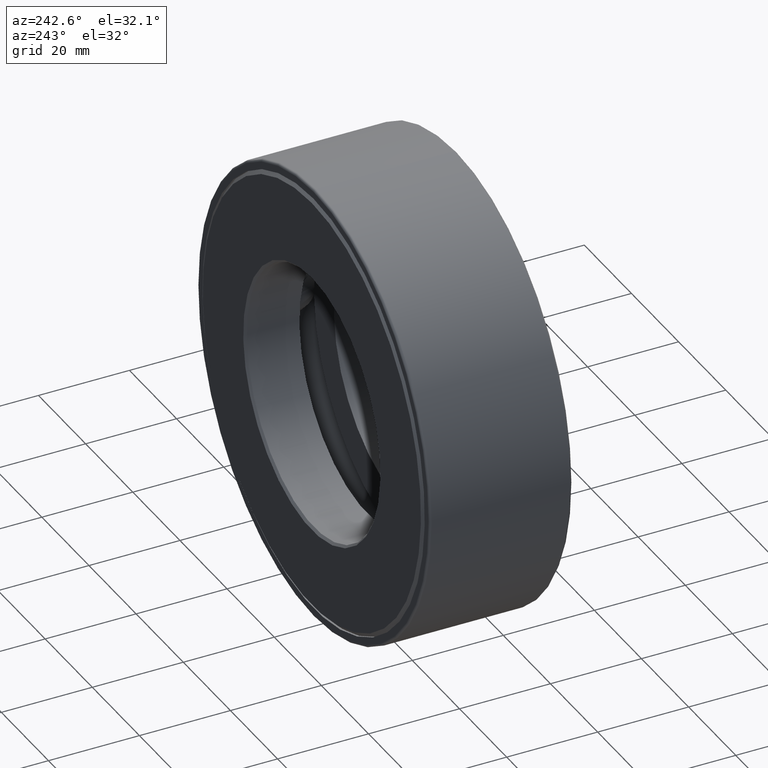
[diagram: clean part render]
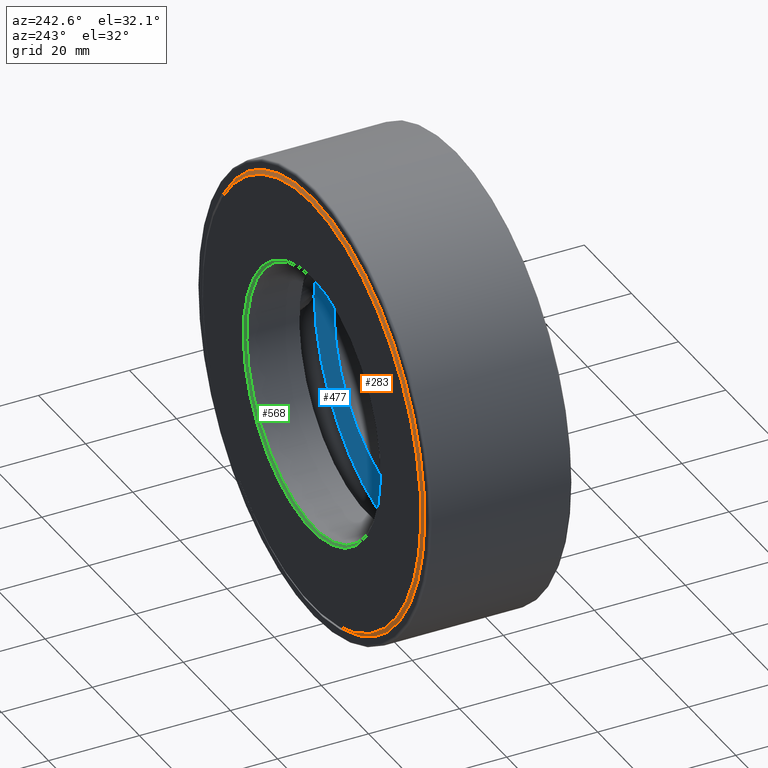
[diagram: same view with three faces highlighted in distinct colors, each labeled with its STEP entity id]
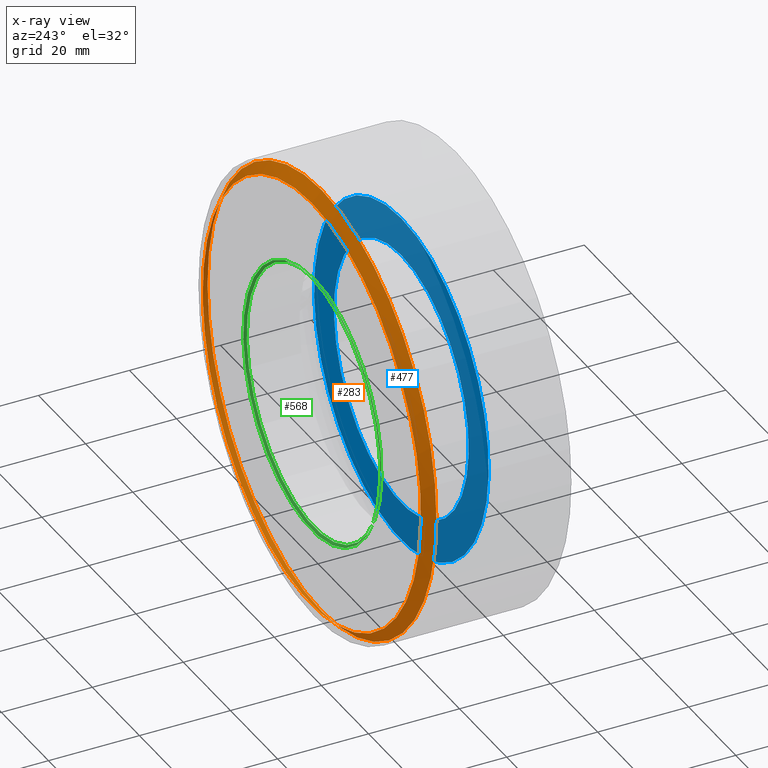
[diagram: x-ray of the same camera — body ghosted, the three highlighted faces saturated]
A machine part, auxiliary view with three faces highlighted in distinct colors.
The next image is the same camera in x-ray (body ghosted, the three faces saturated) — at least one of them is partly hidden behind the body in this view.
Their STEP definitions:

[orange] entity #283 — the highlighted conical surface has half-angle 45 deg.
#9 = AXIS2_PLACEMENT_3D ( 'NONE', #162, #260, #499 ) ;
#62 = CARTESIAN_POINT ( 'NONE',  ( 0.0000000000000000000, 1.162000000000000100, 0.0000000000000000000 ) ) ;
#82 = VERTEX_POINT ( 'NONE', #466 ) ;
#84 = DIRECTION ( 'NONE',  ( -0.0000000000000000000, 1.000000000000000000, -0.0000000000000000000 ) ) ;
#109 = AXIS2_PLACEMENT_3D ( 'NONE', #62, #84, #511 ) ;
#116 = AXIS2_PLACEMENT_3D ( 'NONE', #576, #387, #541 ) ;
#117 = ORIENTED_EDGE ( 'NONE', *, *, #566, .T. ) ;
#136 = CIRCLE ( 'NONE', #109, 1.910499999999999600 ) ;
#150 = VERTEX_POINT ( 'NONE', #180 ) ;
#162 = CARTESIAN_POINT ( 'NONE',  ( 0.0000000000000000000, 1.250000000000000000, 0.0000000000000000000 ) ) ;
#180 = CARTESIAN_POINT ( 'NONE',  ( 0.0000000000000000000, 1.250000000000000000, 1.822499999999999600 ) ) ;
#239 = FACE_OUTER_BOUND ( 'NONE', #584, .T. ) ;
#260 = DIRECTION ( 'NONE',  ( -0.0000000000000000000, 1.000000000000000000, -0.0000000000000000000 ) ) ;
#283 = ADVANCED_FACE ( 'NONE', ( #239, #343 ), #375, .T. ) ;
#301 = EDGE_LOOP ( 'NONE', ( #586 ) ) ;
#343 = FACE_BOUND ( 'NONE', #301, .T. ) ;
#375 = CONICAL_SURFACE ( 'NONE', #116, 1.822499999999999600, 0.7853981633974498300 ) ;
#387 = DIRECTION ( 'NONE',  ( 0.0000000000000000000, -1.000000000000000000, 0.0000000000000000000 ) ) ;
#445 = CIRCLE ( 'NONE', #9, 1.822499999999999600 ) ;
#466 = CARTESIAN_POINT ( 'NONE',  ( 0.0000000000000000000, 1.162000000000000100, 1.910499999999999600 ) ) ;
#468 = EDGE_CURVE ( 'NONE', #150, #150, #445, .T. ) ;
#499 = DIRECTION ( 'NONE',  ( 0.0000000000000000000, 0.0000000000000000000, 1.000000000000000000 ) ) ;
#511 = DIRECTION ( 'NONE',  ( 0.0000000000000000000, 0.0000000000000000000, 1.000000000000000000 ) ) ;
#541 = DIRECTION ( 'NONE',  ( 0.0000000000000000000, 0.0000000000000000000, -1.000000000000000000 ) ) ;
#566 = EDGE_CURVE ( 'NONE', #82, #82, #136, .T. ) ;
#576 = CARTESIAN_POINT ( 'NONE',  ( 0.0000000000000000000, 1.250000000000000000, 0.0000000000000000000 ) ) ;
#584 = EDGE_LOOP ( 'NONE', ( #117 ) ) ;
#586 = ORIENTED_EDGE ( 'NONE', *, *, #468, .F. ) ;

[blue] entity #477 — the highlighted planar face has unit normal (0, -1, 0).
#43 = EDGE_LOOP ( 'NONE', ( #570 ) ) ;
#72 = VERTEX_POINT ( 'NONE', #463 ) ;
#87 = EDGE_LOOP ( 'NONE', ( #254 ) ) ;
#119 = DIRECTION ( 'NONE',  ( 0.0000000000000000000, 0.0000000000000000000, 1.000000000000000000 ) ) ;
#159 = EDGE_CURVE ( 'NONE', #550, #550, #368, .T. ) ;
#212 = DIRECTION ( 'NONE',  ( 0.0000000000000000000, -0.0000000000000000000, -1.000000000000000000 ) ) ;
#216 = PLANE ( 'NONE',  #501 ) ;
#249 = CARTESIAN_POINT ( 'NONE',  ( 0.0000000000000000000, 0.4750000000000003100, 0.0000000000000000000 ) ) ;
#254 = ORIENTED_EDGE ( 'NONE', *, *, #159, .T. ) ;
#256 = FACE_BOUND ( 'NONE', #43, .T. ) ;
#262 = DIRECTION ( 'NONE',  ( 0.0000000000000000000, -1.000000000000000000, 0.0000000000000000000 ) ) ;
#270 = FACE_OUTER_BOUND ( 'NONE', #87, .T. ) ;
#317 = CARTESIAN_POINT ( 'NONE',  ( 0.0000000000000000000, 0.4750000000000003100, 1.458499999999999500 ) ) ;
#368 = CIRCLE ( 'NONE', #437, 1.458499999999999500 ) ;
#391 = CIRCLE ( 'NONE', #531, 1.125000000000000200 ) ;
#408 = EDGE_CURVE ( 'NONE', #72, #72, #391, .T. ) ;
#437 = AXIS2_PLACEMENT_3D ( 'NONE', #249, #475, #478 ) ;
#439 = CARTESIAN_POINT ( 'NONE',  ( 4.863672402513210800E-016, 0.4750000000000001400, 0.0000000000000000000 ) ) ;
#450 = DIRECTION ( 'NONE',  ( -0.0000000000000000000, 1.000000000000000000, -0.0000000000000000000 ) ) ;
#463 = CARTESIAN_POINT ( 'NONE',  ( 0.0000000000000000000, 0.4749999999999999800, 1.125000000000000200 ) ) ;
#475 = DIRECTION ( 'NONE',  ( -0.0000000000000000000, 1.000000000000000000, -0.0000000000000000000 ) ) ;
#477 = ADVANCED_FACE ( 'NONE', ( #256, #270 ), #216, .F. ) ;
#478 = DIRECTION ( 'NONE',  ( 0.0000000000000000000, 0.0000000000000000000, 1.000000000000000000 ) ) ;
#501 = AXIS2_PLACEMENT_3D ( 'NONE', #439, #262, #212 ) ;
#502 = CARTESIAN_POINT ( 'NONE',  ( 0.0000000000000000000, 0.4749999999999999800, 0.0000000000000000000 ) ) ;
#531 = AXIS2_PLACEMENT_3D ( 'NONE', #502, #450, #119 ) ;
#550 = VERTEX_POINT ( 'NONE', #317 ) ;
#570 = ORIENTED_EDGE ( 'NONE', *, *, #408, .F. ) ;

[green] entity #568 — the highlighted conical surface has half-angle 45 deg.
#40 = ORIENTED_EDGE ( 'NONE', *, *, #456, .F. ) ;
#78 = CIRCLE ( 'NONE', #404, 1.145000000000000500 ) ;
#101 = VERTEX_POINT ( 'NONE', #410 ) ;
#146 = EDGE_LOOP ( 'NONE', ( #40 ) ) ;
#160 = CARTESIAN_POINT ( 'NONE',  ( 0.0000000000000000000, 1.229999999999999800, 0.0000000000000000000 ) ) ;
#183 = FACE_BOUND ( 'NONE', #146, .T. ) ;
#185 = ORIENTED_EDGE ( 'NONE', *, *, #245, .T. ) ;
#186 = CARTESIAN_POINT ( 'NONE',  ( 0.0000000000000000000, 1.229999999999999800, 0.0000000000000000000 ) ) ;
#235 = DIRECTION ( 'NONE',  ( 0.0000000000000000000, 0.0000000000000000000, 1.000000000000000000 ) ) ;
#242 = CONICAL_SURFACE ( 'NONE', #269, 1.125000000000000200, 0.7853981633974449500 ) ;
#245 = EDGE_CURVE ( 'NONE', #346, #346, #78, .T. ) ;
#269 = AXIS2_PLACEMENT_3D ( 'NONE', #186, #417, #235 ) ;
#346 = VERTEX_POINT ( 'NONE', #405 ) ;
#393 = AXIS2_PLACEMENT_3D ( 'NONE', #160, #497, #440 ) ;
#404 = AXIS2_PLACEMENT_3D ( 'NONE', #489, #429, #537 ) ;
#405 = CARTESIAN_POINT ( 'NONE',  ( 0.0000000000000000000, 1.250000000000000000, 1.145000000000000500 ) ) ;
#410 = CARTESIAN_POINT ( 'NONE',  ( 0.0000000000000000000, 1.229999999999999800, 1.125000000000000200 ) ) ;
#417 = DIRECTION ( 'NONE',  ( -0.0000000000000000000, 1.000000000000000000, -0.0000000000000000000 ) ) ;
#429 = DIRECTION ( 'NONE',  ( -0.0000000000000000000, 1.000000000000000000, -0.0000000000000000000 ) ) ;
#440 = DIRECTION ( 'NONE',  ( 0.0000000000000000000, 0.0000000000000000000, 1.000000000000000000 ) ) ;
#456 = EDGE_CURVE ( 'NONE', #101, #101, #578, .T. ) ;
#489 = CARTESIAN_POINT ( 'NONE',  ( 0.0000000000000000000, 1.250000000000000000, 0.0000000000000000000 ) ) ;
#497 = DIRECTION ( 'NONE',  ( -0.0000000000000000000, 1.000000000000000000, -0.0000000000000000000 ) ) ;
#537 = DIRECTION ( 'NONE',  ( 0.0000000000000000000, 0.0000000000000000000, 1.000000000000000000 ) ) ;
#561 = FACE_OUTER_BOUND ( 'NONE', #563, .T. ) ;
#563 = EDGE_LOOP ( 'NONE', ( #185 ) ) ;
#568 = ADVANCED_FACE ( 'NONE', ( #561, #183 ), #242, .F. ) ;
#578 = CIRCLE ( 'NONE', #393, 1.125000000000000200 ) ;